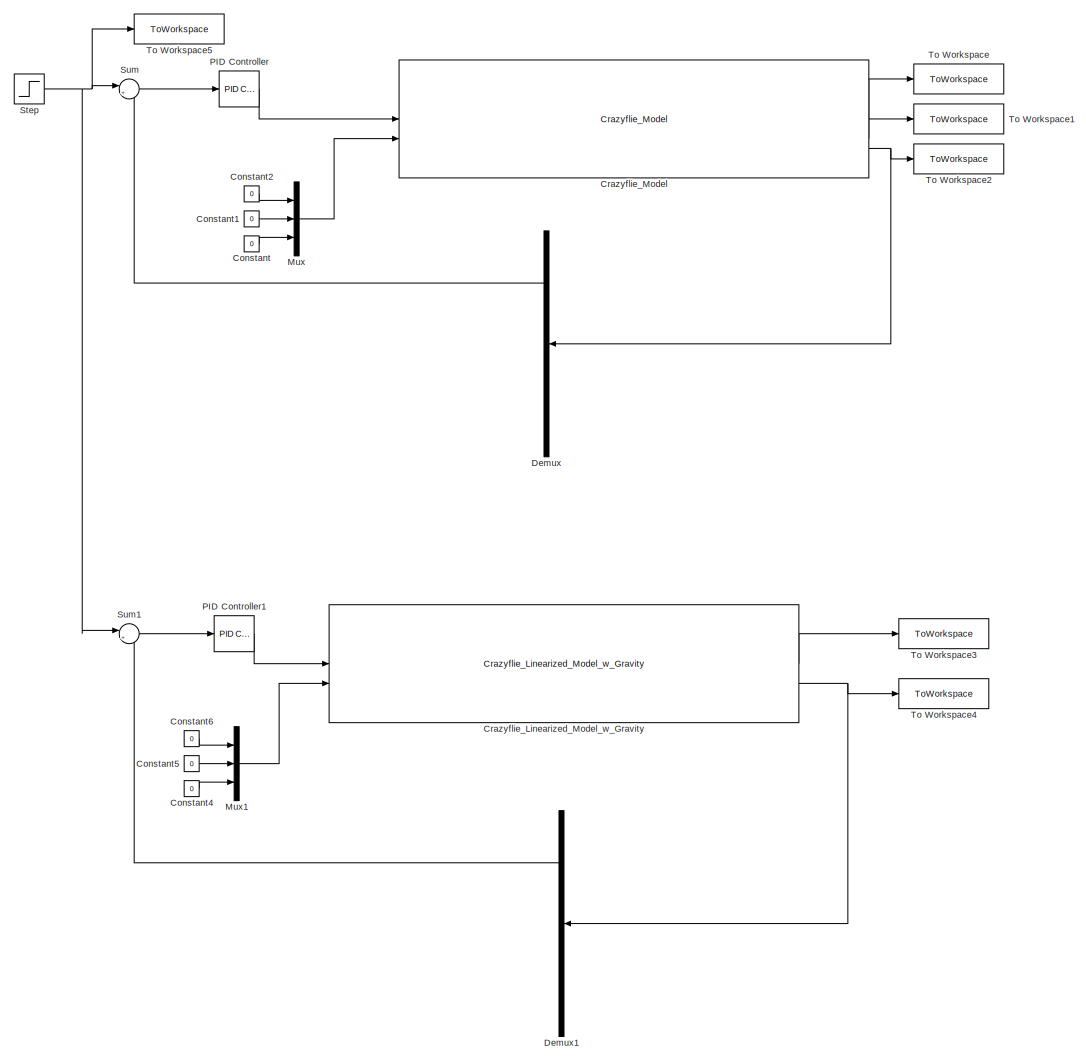
[diagram: root canvas - part 1/1, most of the canvas]
MODEL slx_9116526bb518
KIND model
CONFIG AbsTol = auto
CONFIG EnableMultiTasking = off
CONFIG FixedStep = auto
CONFIG MaxStep = auto
CONFIG MinStep = auto
CONFIG RelTol = 1e-3
CONFIG SampleTimeConstraint = Unconstrained
CONFIG SolverName = VariableStepAuto
CONFIG StartTime = 0.0
CONFIG StopTime = 50
BLOCK [Constant] Constant
  Value = 0
BLOCK [Constant] Constant1
  Value = 0
BLOCK [Constant] Constant2
  Value = 0
BLOCK [Constant] Constant4
  Value = 0
BLOCK [Constant] Constant5
  Value = 0
BLOCK [Constant] Constant6
  Value = 0
BLOCK [Reference] Crazyflie_Linearized_Model_w_Gravity  REF=Crazyflie_Library/Crazyflie_Linearized_Model_w_Gravity
  SourceBlock = Crazyflie_Library/Crazyflie_Linearized_Model_w_Gravity
  SourceType = SubSystem
BLOCK [Reference] Crazyflie_Model  REF=Crazyflie_Library/Crazyflie_Model
  SourceBlock = Crazyflie_Library/Crazyflie_Model
  SourceType = SubSystem
BLOCK [Demux] Demux
  NameLocation = top
  Outputs = 12
BLOCK [Demux] Demux1
  NameLocation = top
  Outputs = 12
BLOCK [Mux] Mux
  DisplayOption = bar
  Inputs = 3
BLOCK [Mux] Mux1
  DisplayOption = bar
  Inputs = 3
BLOCK [Reference] PID Controller  REF=slpidlib/PID Controller
  LibrarySourceBlock = simulink/Continuous/PID Controller
  SourceBlock = slpidlib/PID Controller
  SourceType = PID 1dof
BLOCK [Reference] PID Controller1  REF=slpidlib/PID Controller
  LibrarySourceBlock = simulink/Continuous/PID Controller
  SourceBlock = slpidlib/PID Controller
  SourceType = PID 1dof
BLOCK [Step] Step
  SampleTime = 0
BLOCK [Sum] Sum
  Inputs = |+-
BLOCK [Sum] Sum1
  Inputs = |+-
BLOCK [ToWorkspace] To Workspace
  FixptAsFi = on
  MaxDataPoints = inf
  SampleTime = -1
  SaveFormat = Timeseries
  VariableName = per_motor
BLOCK [ToWorkspace] To Workspace1
  FixptAsFi = on
  MaxDataPoints = inf
  SampleTime = -1
  SaveFormat = Timeseries
  VariableName = full_state_act
BLOCK [ToWorkspace] To Workspace2
  FixptAsFi = on
  MaxDataPoints = inf
  SampleTime = -1
  SaveFormat = Timeseries
  VariableName = full_state_mes
BLOCK [ToWorkspace] To Workspace3
  FixptAsFi = on
  MaxDataPoints = inf
  SampleTime = -1
  SaveFormat = Timeseries
  VariableName = per_motor_lin_model
BLOCK [ToWorkspace] To Workspace4
  FixptAsFi = on
  MaxDataPoints = inf
  SampleTime = -1
  SaveFormat = Timeseries
  VariableName = full_state_act_lin
BLOCK [ToWorkspace] To Workspace5
  FixptAsFi = on
  MaxDataPoints = inf
  SampleTime = -1
  SaveFormat = Timeseries
  VariableName = reference
LINE Constant1:1 -> Mux:2
LINE Constant2:1 -> Mux:1
LINE Constant4:1 -> Mux1:3
LINE Constant5:1 -> Mux1:2
LINE Constant6:1 -> Mux1:1
LINE Constant:1 -> Mux:3
LINE Crazyflie_Linearized_Model_w_Gravity:1 -> To Workspace3:1
NET Crazyflie_Linearized_Model_w_Gravity:2 -> Demux1:1, To Workspace4:1
LINE Crazyflie_Model:1 -> To Workspace:1
LINE Crazyflie_Model:2 -> To Workspace1:1
NET Crazyflie_Model:3 -> Demux:1, To Workspace2:1
LINE Demux1:3 -> Sum1:2
LINE Demux:3 -> Sum:2
LINE Mux1:1 -> Crazyflie_Linearized_Model_w_Gravity:2
LINE Mux:1 -> Crazyflie_Model:2
LINE PID Controller1:1 -> Crazyflie_Linearized_Model_w_Gravity:1
LINE PID Controller:1 -> Crazyflie_Model:1
NET Step:1 -> Sum1:1, Sum:1, To Workspace5:1
LINE Sum1:1 -> PID Controller1:1
LINE Sum:1 -> PID Controller:1
note: NET lines group one-source signal fan-out (src -> all destinations, sorted); 1:1 wires keep LINE
